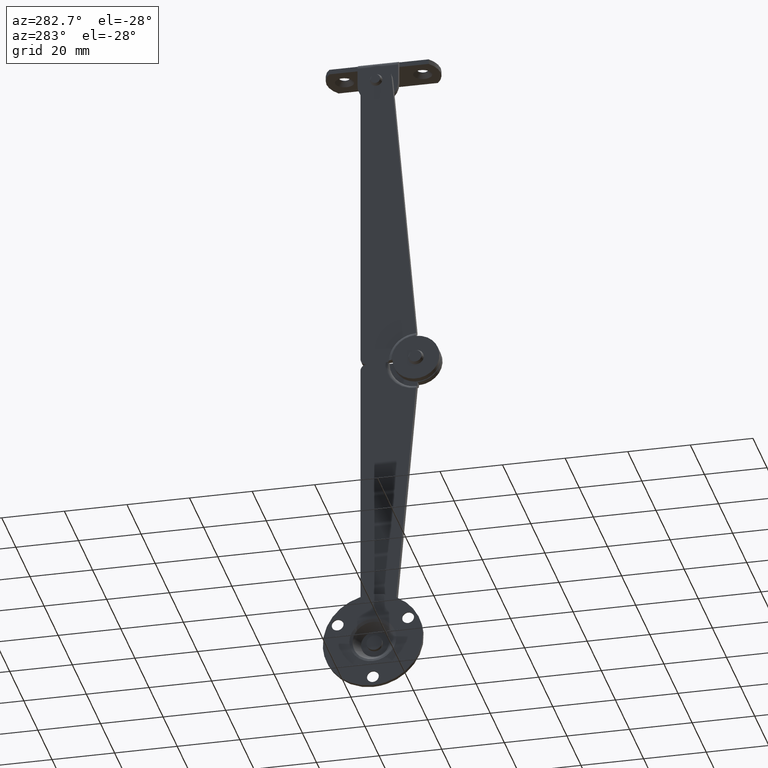
[diagram: clean part render]
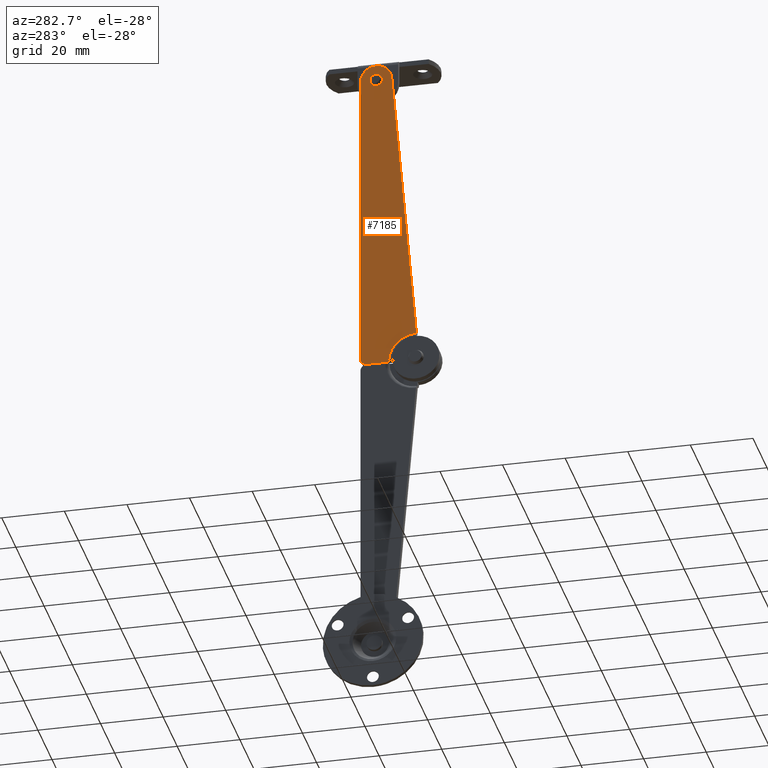
[diagram: same view with one face highlighted and labeled with its STEP entity id]
A machine part, auxiliary view. The second image highlights one B-rep face of the part: STEP entity #7185.
In plain terms, the highlighted face is a freeform B-spline surface patch.
Its self-contained STEP definition (entity closure, byte-faithful):
#6518=CARTESIAN_POINT('',(4.699993133544766,11.504623999535870,99.882296095896649));
#6519=VERTEX_POINT('',#6518);
#6525=CARTESIAN_POINT('',(4.699993133544766,13.000000000000011,101.499984741210800));
#6526=VERTEX_POINT('',#6525);
#6527=CARTESIAN_POINT('',(4.699993133544766,11.504623999535871,99.882296095896649));
#6528=CARTESIAN_POINT('',(4.699993133544766,11.500000000000011,99.941049579834100));
#6529=CARTESIAN_POINT('',(4.699993133544766,11.500000000000011,99.999984741210767));
#6530=CARTESIAN_POINT('',(4.699993133544765,11.500000000000012,101.499984741210770));
#6531=CARTESIAN_POINT('',(4.699993133544766,13.000000000000011,101.499984741210800));
#6539=(BOUNDED_CURVE()B_SPLINE_CURVE(2,(#6527,#6528,#6529,#6530,#6531),.UNSPECIFIED.,.F.,.U.)B_SPLINE_CURVE_WITH_KNOTS((3,2,3),(0.736331300435322,0.750000000000000,1.0),.UNSPECIFIED.)CURVE()GEOMETRIC_REPRESENTATION_ITEM()RATIONAL_B_SPLINE_CURVE((0.969723355759763,0.983986122350030,1.0,0.707106781186548,1.0))REPRESENTATION_ITEM(''));
#6540=EDGE_CURVE('',#6519,#6526,#6539,.T.);
#6542=CARTESIAN_POINT('',(4.699993133544766,14.495376000464150,100.117673386524900));
#6543=VERTEX_POINT('',#6542);
#6544=CARTESIAN_POINT('',(4.699993133544766,13.000000000000011,101.499984741210800));
#6545=CARTESIAN_POINT('',(4.699993133544765,14.386585735885324,101.499984741210750));
#6546=CARTESIAN_POINT('',(4.699993133544767,14.495376000464148,100.117673386524900));
#6554=(BOUNDED_CURVE()B_SPLINE_CURVE(2,(#6544,#6545,#6546),.UNSPECIFIED.,.F.,.U.)B_SPLINE_CURVE_WITH_KNOTS((3,3),(0.0,0.236331300435321),.UNSPECIFIED.)CURVE()GEOMETRIC_REPRESENTATION_ITEM()RATIONAL_B_SPLINE_CURVE((1.0,0.723120658836519,0.969723355759761))REPRESENTATION_ITEM(''));
#6555=EDGE_CURVE('',#6526,#6543,#6554,.T.);
#6601=CARTESIAN_POINT('',(4.699993133544766,13.000000000000011,98.499984741210753));
#6602=VERTEX_POINT('',#6601);
#6603=CARTESIAN_POINT('',(4.699993133544766,14.495376000464145,100.117673386524910));
#6604=CARTESIAN_POINT('',(4.699993133544766,14.500000000000012,100.058919902587460));
#6605=CARTESIAN_POINT('',(4.699993133544766,14.500000000000011,99.999984741210767));
#6606=CARTESIAN_POINT('',(4.699993133544765,14.500000000000016,98.499984741210767));
#6607=CARTESIAN_POINT('',(4.699993133544766,13.000000000000011,98.499984741210753));
#6615=(BOUNDED_CURVE()B_SPLINE_CURVE(2,(#6603,#6604,#6605,#6606,#6607),.UNSPECIFIED.,.F.,.U.)B_SPLINE_CURVE_WITH_KNOTS((3,2,3),(0.236331300435320,0.250000000000000,0.500000000000000),.UNSPECIFIED.)CURVE()GEOMETRIC_REPRESENTATION_ITEM()RATIONAL_B_SPLINE_CURVE((0.969723355759758,0.983986122350027,1.0,0.707106781186548,1.0))REPRESENTATION_ITEM(''));
#6616=EDGE_CURVE('',#6543,#6602,#6615,.T.);
#6618=CARTESIAN_POINT('',(4.699993133544766,13.000000000000011,98.499984741210753));
#6619=CARTESIAN_POINT('',(4.699993133544766,11.613414264114688,98.499984741210767));
#6620=CARTESIAN_POINT('',(4.699993133544765,11.504623999535873,99.882296095896635));
#6628=(BOUNDED_CURVE()B_SPLINE_CURVE(2,(#6618,#6619,#6620),.UNSPECIFIED.,.F.,.U.)B_SPLINE_CURVE_WITH_KNOTS((3,3),(0.500000000000000,0.736331300435323),.UNSPECIFIED.)CURVE()GEOMETRIC_REPRESENTATION_ITEM()RATIONAL_B_SPLINE_CURVE((1.0,0.723120658836517,0.969723355759764))REPRESENTATION_ITEM(''));
#6629=EDGE_CURVE('',#6602,#6519,#6628,.T.);
#7017=CARTESIAN_POINT('',(4.699993133544765,9.000000000000011,5.684342E-014));
#7018=VERTEX_POINT('',#7017);
#7025=CARTESIAN_POINT('',(4.699993133544764,0.129379741746873,8.999070000973736));
#7026=VERTEX_POINT('',#7025);
#7032=CARTESIAN_POINT('',(4.699993133544764,0.129379741746877,8.999070000973740));
#7033=CARTESIAN_POINT('',(4.699993133544765,9.000000000000011,8.871536982781512));
#7034=CARTESIAN_POINT('',(4.699993133544765,9.000000000000011,2.524355E-029));
#7042=(BOUNDED_CURVE()B_SPLINE_CURVE(2,(#7032,#7033,#7034),.UNSPECIFIED.,.F.,.U.)CURVE()GEOMETRIC_REPRESENTATION_ITEM()QUASI_UNIFORM_CURVE()RATIONAL_B_SPLINE_CURVE((1.0,0.712171161611014,1.0))REPRESENTATION_ITEM(''));
#7043=EDGE_CURVE('',#7026,#7018,#7042,.T.);
#7117=CARTESIAN_POINT('',(4.699993133544806,18.892637447263020,110.239473305929910));
#7118=CARTESIAN_POINT('',(4.699993133544804,-0.763258184843531,110.239473305929910));
#7119=CARTESIAN_POINT('',(4.699993133544806,18.892637447263020,-5.244501590536481));
#7120=CARTESIAN_POINT('',(4.699993133544804,-0.763258184843531,-5.244501590536481));
#7121=B_SPLINE_SURFACE_WITH_KNOTS('',1,1,((#7117,#7119),(#7118,#7120)),.UNSPECIFIED.,.F.,.F.,.U.,(2,2),(2,2),(0.0,19.655895632106560),(0.0,115.483974896466410),.UNSPECIFIED.);
#7122=ORIENTED_EDGE('',*,*,#7043,.F.);
#7123=CARTESIAN_POINT('',(4.699993133544765,8.020030799330062,100.447094079492500));
#7124=VERTEX_POINT('',#7123);
#7125=CARTESIAN_POINT('',(4.699993133544764,0.129379741746873,8.999070000973736));
#7126=CARTESIAN_POINT('',(4.699993133544765,8.020030799330062,100.447094079492500));
#7127=QUASI_UNIFORM_CURVE('',1,(#7125,#7126),.UNSPECIFIED.,.F.,.U.);
#7128=EDGE_CURVE('',#7026,#7124,#7127,.T.);
#7129=ORIENTED_EDGE('',*,*,#7128,.T.);
#7130=CARTESIAN_POINT('',(4.699993133544766,18.000000000000011,99.999984741210852));
#7131=VERTEX_POINT('',#7130);
#7132=CARTESIAN_POINT('',(4.699993133544765,8.020030799330062,100.447094079492500));
#7133=CARTESIAN_POINT('',(4.699993133544769,8.055472427973951,100.842908539388700));
#7134=CARTESIAN_POINT('',(4.699993133544753,8.204976692708685,101.547610226907200));
#7135=CARTESIAN_POINT('',(4.699993133544775,8.729471816052802,102.712558326533300));
#7136=CARTESIAN_POINT('',(4.699993133544764,9.571492983061537,103.741728354334300));
#7137=CARTESIAN_POINT('',(4.699993133544747,10.639565594220031,104.452089159548000));
#7138=CARTESIAN_POINT('',(4.699993133544774,11.828194261939061,104.916711401105500));
#7139=CARTESIAN_POINT('',(4.699993133544795,12.987912078370361,105.059165465975300));
#7140=CARTESIAN_POINT('',(4.699993133544758,14.134282683993300,104.897028581933990));
#7141=CARTESIAN_POINT('',(4.699993133544793,15.156727272225041,104.559533111001400));
#7142=CARTESIAN_POINT('',(4.699993133544703,16.289587557262230,103.872364098545110));
#7143=CARTESIAN_POINT('',(4.699993133544792,17.214532125041480,102.807591792678200));
#7144=CARTESIAN_POINT('',(4.699993133544758,17.845739893614279,101.470105582575400));
#7145=CARTESIAN_POINT('',(4.699993133544768,18.000390832913649,100.556378470587800));
#7146=CARTESIAN_POINT('',(4.699993133544766,18.000000000000011,99.999984741210852));
#7147=B_SPLINE_CURVE_WITH_KNOTS('',3,(#7132,#7133,#7134,#7135,#7136,#7137,#7138,#7139,#7140,#7141,#7142,#7143,#7144,#7145,#7146),.UNSPECIFIED.,.F.,.U.,(4,1,1,1,1,1,1,1,1,1,1,1,4),(0.000000137094867,1.192201430622015,2.146013618845815,3.815161052552515,5.126622296159052,5.961270864849338,7.630308682540198,8.583999638188598,9.418614096381454,10.849318337223410,12.518510980403700,13.591560836829000,15.260617336294180),.UNSPECIFIED.);
#7148=EDGE_CURVE('',#7124,#7131,#7147,.T.);
#7149=ORIENTED_EDGE('',*,*,#7148,.T.);
#7150=CARTESIAN_POINT('',(4.699993133544766,18.000000000000011,1.999996185302737));
#7151=VERTEX_POINT('',#7150);
#7152=CARTESIAN_POINT('',(4.699993133544766,18.000000000000011,99.999984741210852));
#7153=CARTESIAN_POINT('',(4.699993133544766,18.000000000000011,1.999996185302737));
#7154=QUASI_UNIFORM_CURVE('',1,(#7152,#7153),.UNSPECIFIED.,.F.,.U.);
#7155=EDGE_CURVE('',#7131,#7151,#7154,.T.);
#7156=ORIENTED_EDGE('',*,*,#7155,.T.);
#7157=CARTESIAN_POINT('',(4.699993133544766,16.000000000000011,-1.127987E-013));
#7158=VERTEX_POINT('',#7157);
#7159=CARTESIAN_POINT('',(4.699993133544766,18.000000000000011,1.999996185302737));
#7160=CARTESIAN_POINT('',(4.699993133544766,17.999996185306497,-1.131595E-013));
#7161=CARTESIAN_POINT('',(4.699993133544766,16.000000000000011,-1.131595E-013));
#7169=(BOUNDED_CURVE()B_SPLINE_CURVE(2,(#7159,#7160,#7161),.UNSPECIFIED.,.F.,.U.)CURVE()GEOMETRIC_REPRESENTATION_ITEM()QUASI_UNIFORM_CURVE()RATIONAL_B_SPLINE_CURVE((1.0,0.707107455535781,1.0))REPRESENTATION_ITEM(''));
#7170=EDGE_CURVE('',#7151,#7158,#7169,.T.);
#7171=ORIENTED_EDGE('',*,*,#7170,.T.);
#7172=CARTESIAN_POINT('',(4.699993133544766,16.000000000000011,-1.127987E-013));
#7173=CARTESIAN_POINT('',(4.699993133544765,9.000000000000011,5.684342E-014));
#7174=QUASI_UNIFORM_CURVE('',1,(#7172,#7173),.UNSPECIFIED.,.F.,.U.);
#7175=EDGE_CURVE('',#7158,#7018,#7174,.T.);
#7176=ORIENTED_EDGE('',*,*,#7175,.T.);
#7177=EDGE_LOOP('',(#7122,#7129,#7149,#7156,#7171,#7176));
#7178=FACE_OUTER_BOUND('',#7177,.T.);
#7179=ORIENTED_EDGE('',*,*,#6629,.F.);
#7180=ORIENTED_EDGE('',*,*,#6616,.F.);
#7181=ORIENTED_EDGE('',*,*,#6555,.F.);
#7182=ORIENTED_EDGE('',*,*,#6540,.F.);
#7183=EDGE_LOOP('',(#7179,#7180,#7181,#7182));
#7184=FACE_BOUND('',#7183,.T.);
#7185=ADVANCED_FACE('',(#7178,#7184),#7121,.F.);